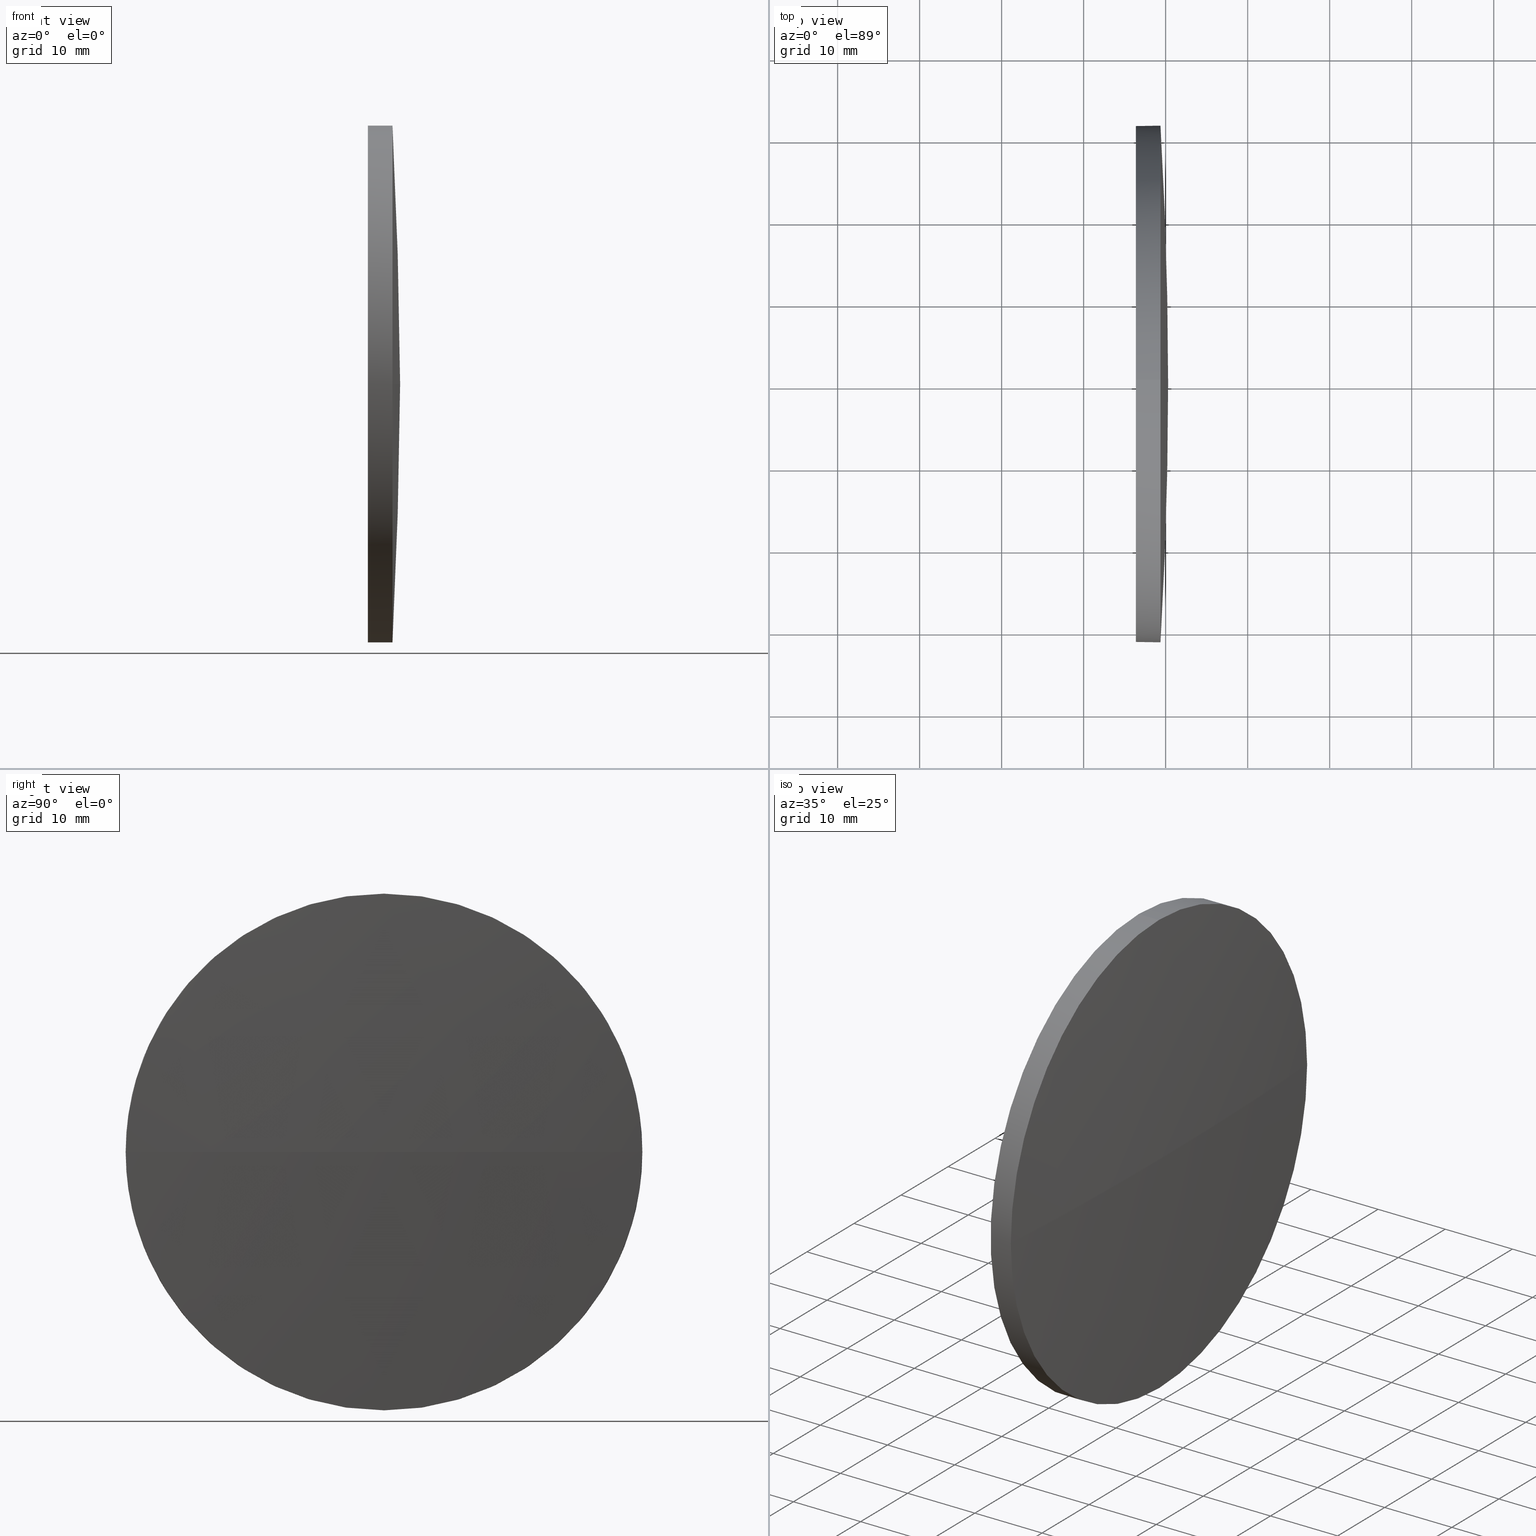
[diagram: canonical four-view strip — front | top / right | iso, engineering-drawing reading convention]
A machine part, canonical four-view strip (front | top / right | iso — engineering-drawing reading convention). The complete STEP part file that produces these views, byte-faithful:
ISO-10303-21;
HEADER;
FILE_DESCRIPTION (( 'STEP AP214' ),
    '1' );
FILE_NAME ('100076.STEP',
    '2019-05-06T05:13:00',
    ( '' ),
    ( '' ),
    'SwSTEP 2.0',
    'SolidWorks 2016',
    '' );
FILE_SCHEMA (( 'AUTOMOTIVE_DESIGN' ));
ENDSEC;

DATA;
#1 = ORIENTED_EDGE ( 'NONE', *, *, #140, .T. ) ;
#2 = AXIS2_PLACEMENT_3D ( 'NONE', #176, #177, #114 ) ;
#3 = CARTESIAN_POINT ( 'NONE',  ( 239.3701037227096700, 130.0418907599245100, 0.0000000000000000000 ) ) ;
#4 = SURFACE_STYLE_FILL_AREA ( #138 ) ;
#5 = DIRECTION ( 'NONE',  ( -1.000000000000000000, -0.0000000000000000000, -0.0000000000000000000 ) ) ;
#6 =( NAMED_UNIT ( * ) PLANE_ANGLE_UNIT ( ) SI_UNIT ( $, .RADIAN. ) );
#7 = ORIENTED_EDGE ( 'NONE', *, *, #74, .T. ) ;
#8 = EDGE_CURVE ( 'NONE', #51, #98, #100, .T. ) ;
#9 = VECTOR ( 'NONE', #184, 1000.000000000000000 ) ;
#10 = EDGE_CURVE ( 'NONE', #45, #39, #79, .T. ) ;
#11 = COLOUR_RGB ( '',1.000000000000000000, 1.000000000000000000, 1.000000000000000000 ) ;
#12 = EDGE_CURVE ( 'NONE', #17, #39, #161, .T. ) ;
#13 = SHAPE_DEFINITION_REPRESENTATION ( #68, #124 ) ;
#14 = ORIENTED_EDGE ( 'NONE', *, *, #74, .F. ) ;
#15 = DIRECTION ( 'NONE',  ( 0.0000000000000000000, 0.0000000000000000000, 1.000000000000000000 ) ) ;
#16 = DIRECTION ( 'NONE',  ( -1.000000000000000000, -0.0000000000000000000, -0.0000000000000000000 ) ) ;
#17 = VERTEX_POINT ( 'NONE', #30 ) ;
#18 = STYLED_ITEM ( 'NONE', ( #76 ), #28 ) ;
#19 = COLOUR_RGB ( '',1.000000000000000000, 1.000000000000000000, 1.000000000000000000 ) ;
#20 = DIRECTION ( 'NONE',  ( 0.0000000000000000000, 0.0000000000000000000, -1.000000000000000000 ) ) ;
#21 = CARTESIAN_POINT ( 'NONE',  ( -293.6326382127700200, 130.0418907599257100, 0.0000000000000000000 ) ) ;
#22 =( GEOMETRIC_REPRESENTATION_CONTEXT ( 3 ) GLOBAL_UNCERTAINTY_ASSIGNED_CONTEXT ( ( #178 ) ) GLOBAL_UNIT_ASSIGNED_CONTEXT ( ( #157, #6, #24 ) ) REPRESENTATION_CONTEXT ( 'NONE', 'WORKASPACE' ) );
#23 = CARTESIAN_POINT ( 'NONE',  ( -293.6326382127700200, 130.0418907599257100, 0.0000000000000000000 ) ) ;
#24 =( NAMED_UNIT ( * ) SI_UNIT ( $, .STERADIAN. ) SOLID_ANGLE_UNIT ( ) );
#25 = ORIENTED_EDGE ( 'NONE', *, *, #102, .F. ) ;
#26 = ADVANCED_FACE ( 'NONE', ( #137 ), #104, .F. ) ;
#27 = ORIENTED_EDGE ( 'NONE', *, *, #166, .T. ) ;
#28 = MANIFOLD_SOLID_BREP ( '��ת1', #165 ) ;
#29 = AXIS2_PLACEMENT_3D ( 'NONE', #103, #42, #53 ) ;
#30 = CARTESIAN_POINT ( 'NONE',  ( 239.3701037227096700, 130.0418907599245100, -31.50000000000000000 ) ) ;
#31 = CARTESIAN_POINT ( 'NONE',  ( 236.3701037227096700, 130.0418907599245100, 31.50000000000000000 ) ) ;
#32 = DIRECTION ( 'NONE',  ( 0.0000000000000000000, 0.0000000000000000000, -1.000000000000000000 ) ) ;
#33 = CARTESIAN_POINT ( 'NONE',  ( 236.3701037227096700, 130.0418907599245100, 0.0000000000000000000 ) ) ;
#34 = ORIENTED_EDGE ( 'NONE', *, *, #95, .T. ) ;
#35 = VECTOR ( 'NONE', #120, 1000.000000000000000 ) ;
#36 = AXIS2_PLACEMENT_3D ( 'NONE', #33, #155, #121 ) ;
#37 = DIRECTION ( 'NONE',  ( -1.000000000000000000, 0.0000000000000000000, 0.0000000000000000000 ) ) ;
#38 = DIRECTION ( 'NONE',  ( 0.0000000000000000000, -1.000000000000000000, 0.0000000000000000000 ) ) ;
#39 = VERTEX_POINT ( 'NONE', #57 ) ;
#40 = DIRECTION ( 'NONE',  ( -1.000000000000000000, -0.0000000000000000000, -0.0000000000000000000 ) ) ;
#41 = ORIENTED_EDGE ( 'NONE', *, *, #12, .F. ) ;
#42 = DIRECTION ( 'NONE',  ( -1.000000000000000000, -0.0000000000000000000, -0.0000000000000000000 ) ) ;
#43 = DIRECTION ( 'NONE',  ( 1.000000000000000000, 0.0000000000000000000, 0.0000000000000000000 ) ) ;
#44 = SPHERICAL_SURFACE ( 'NONE', #117, 533.9327419354797300 ) ;
#45 = VERTEX_POINT ( 'NONE', #31 ) ;
#46 = ORIENTED_EDGE ( 'NONE', *, *, #140, .F. ) ;
#47 = APPLICATION_PROTOCOL_DEFINITION ( 'draft international standard', 'automotive_design', 1998, #129 ) ;
#48 = AXIS2_PLACEMENT_3D ( 'NONE', #75, #16, #133 ) ;
#49 = EDGE_LOOP ( 'NONE', ( #34, #83, #92, #127, #181 ) ) ;
#50 = STYLED_ITEM ( 'NONE', ( #164 ), #124 ) ;
#51 = VERTEX_POINT ( 'NONE', #107 ) ;
#52 = EDGE_CURVE ( 'NONE', #39, #45, #146, .T. ) ;
#53 = DIRECTION ( 'NONE',  ( 0.0000000000000000000, 0.0000000000000000000, 1.000000000000000000 ) ) ;
#54 = FACE_OUTER_BOUND ( 'NONE', #94, .T. ) ;
#55 = CARTESIAN_POINT ( 'NONE',  ( 239.3701037227096700, 161.5418907599248500, 3.857637417314063300E-015 ) ) ;
#56 = AXIS2_PLACEMENT_3D ( 'NONE', #89, #154, #15 ) ;
#57 = CARTESIAN_POINT ( 'NONE',  ( 236.3701037227096700, 130.0418907599245100, -31.50000000000000000 ) ) ;
#58 = PRESENTATION_LAYER_ASSIGNMENT (  '', '', ( #50 ) ) ;
#59 =( NAMED_UNIT ( * ) SI_UNIT ( $, .STERADIAN. ) SOLID_ANGLE_UNIT ( ) );
#60 =( LENGTH_UNIT ( ) NAMED_UNIT ( * ) SI_UNIT ( .MILLI., .METRE. ) );
#61 = CIRCLE ( 'NONE', #29, 31.50000000000000000 ) ;
#62 = CARTESIAN_POINT ( 'NONE',  ( -293.6326382127700200, 130.0418907599257100, 0.0000000000000000000 ) ) ;
#63 = PRODUCT_DEFINITION_CONTEXT ( 'detailed design', #69, 'design' ) ;
#64 =( NAMED_UNIT ( * ) SI_UNIT ( $, .STERADIAN. ) SOLID_ANGLE_UNIT ( ) );
#65 = MECHANICAL_DESIGN_GEOMETRIC_PRESENTATION_REPRESENTATION (  '', ( #50 ), #22 ) ;
#66 = EDGE_LOOP ( 'NONE', ( #115, #27, #46, #88 ) ) ;
#67 =( NAMED_UNIT ( * ) PLANE_ANGLE_UNIT ( ) SI_UNIT ( $, .RADIAN. ) );
#68 = PRODUCT_DEFINITION_SHAPE ( 'NONE', 'NONE',  #183 ) ;
#69 = APPLICATION_CONTEXT ( 'automotive_design' ) ;
#70 = ADVANCED_FACE ( 'NONE', ( #143 ), #105, .T. ) ;
#71 = SURFACE_STYLE_USAGE ( .BOTH. , #159 ) ;
#72 = UNCERTAINTY_MEASURE_WITH_UNIT (LENGTH_MEASURE( 1.000000000000000100E-005 ), #186, 'distance_accuracy_value', 'NONE');
#73 = AXIS2_PLACEMENT_3D ( 'NONE', #81, #97, #96 ) ;
#74 = EDGE_CURVE ( 'NONE', #156, #174, #61, .T. ) ;
#75 = CARTESIAN_POINT ( 'NONE',  ( 236.3701037227096700, 130.0418907599245100, 0.0000000000000000000 ) ) ;
#76 = PRESENTATION_STYLE_ASSIGNMENT (( #171 ) ) ;
#77 = SURFACE_SIDE_STYLE ('',( #4 ) ) ;
#78 = EDGE_CURVE ( 'NONE', #174, #45, #149, .T. ) ;
#79 = CIRCLE ( 'NONE', #48, 31.50000000000000000 ) ;
#80 = CIRCLE ( 'NONE', #86, 31.50000000000000000 ) ;
#81 = CARTESIAN_POINT ( 'NONE',  ( 0.0000000000000000000, 0.0000000000000000000, 0.0000000000000000000 ) ) ;
#82 = FILL_AREA_STYLE_COLOUR ( '', #19 ) ;
#83 = ORIENTED_EDGE ( 'NONE', *, *, #12, .T. ) ;
#84 = CARTESIAN_POINT ( 'NONE',  ( 239.3701037227096700, 130.0418907599245100, 0.0000000000000000000 ) ) ;
#85 = UNCERTAINTY_MEASURE_WITH_UNIT (LENGTH_MEASURE( 1.000000000000000100E-005 ), #60, 'distance_accuracy_value', 'NONE');
#86 = AXIS2_PLACEMENT_3D ( 'NONE', #3, #93, #162 ) ;
#87 = SPHERICAL_SURFACE ( 'NONE', #125, 533.9327419354797300 ) ;
#88 = ORIENTED_EDGE ( 'NONE', *, *, #95, .F. ) ;
#89 = CARTESIAN_POINT ( 'NONE',  ( 217.3311486608872700, 130.0418907599245100, 0.0000000000000000000 ) ) ;
#90 = DIRECTION ( 'NONE',  ( 0.0000000000000000000, -1.224646799147353200E-016, 1.000000000000000000 ) ) ;
#91 = CARTESIAN_POINT ( 'NONE',  ( 236.3701037227096700, 130.0418907599245100, 0.0000000000000000000 ) ) ;
#92 = ORIENTED_EDGE ( 'NONE', *, *, #10, .F. ) ;
#93 = DIRECTION ( 'NONE',  ( -1.000000000000000000, -0.0000000000000000000, -0.0000000000000000000 ) ) ;
#94 = EDGE_LOOP ( 'NONE', ( #41, #1, #7, #131, #108 ) ) ;
#95 = EDGE_CURVE ( 'NONE', #98, #17, #122, .T. ) ;
#96 = DIRECTION ( 'NONE',  ( 1.000000000000000000, 0.0000000000000000000, 0.0000000000000000000 ) ) ;
#97 = DIRECTION ( 'NONE',  ( 0.0000000000000000000, 0.0000000000000000000, 1.000000000000000000 ) ) ;
#98 = VERTEX_POINT ( 'NONE', #55 ) ;
#99 = CIRCLE ( 'NONE', #128, 533.9327419354796100 ) ;
#100 = CIRCLE ( 'NONE', #163, 533.9327419354797300 ) ;
#101 = CARTESIAN_POINT ( 'NONE',  ( 217.3311486608872700, 130.0418907599245100, 31.50000000000000000 ) ) ;
#102 = EDGE_CURVE ( 'NONE', #174, #98, #80, .T. ) ;
#103 = CARTESIAN_POINT ( 'NONE',  ( 239.3701037227096700, 130.0418907599245100, 0.0000000000000000000 ) ) ;
#104 = PLANE ( 'NONE',  #150 ) ;
#105 = CYLINDRICAL_SURFACE ( 'NONE', #56, 31.50000000000000000 ) ;
#106 = ORIENTED_EDGE ( 'NONE', *, *, #8, .T. ) ;
#107 = CARTESIAN_POINT ( 'NONE',  ( 240.3001037227096500, 130.0418907599256800, 0.0000000000000000000 ) ) ;
#108 = ORIENTED_EDGE ( 'NONE', *, *, #52, .F. ) ;
#109 = PRODUCT_RELATED_PRODUCT_CATEGORY ( 'part', '', ( #134 ) ) ;
#110 = DIRECTION ( 'NONE',  ( 0.0000000000000000000, 0.0000000000000000000, 1.000000000000000000 ) ) ;
#111 = ADVANCED_FACE ( 'NONE', ( #169 ), #44, .T. ) ;
#112 = CARTESIAN_POINT ( 'NONE',  ( 217.3311486608872700, 130.0418907599245100, 0.0000000000000000000 ) ) ;
#113 = APPLICATION_PROTOCOL_DEFINITION ( 'draft international standard', 'automotive_design', 1998, #69 ) ;
#114 = DIRECTION ( 'NONE',  ( 0.0000000000000000000, 0.0000000000000000000, 1.000000000000000000 ) ) ;
#115 = ORIENTED_EDGE ( 'NONE', *, *, #8, .F. ) ;
#116 = ADVANCED_FACE ( 'NONE', ( #130 ), #87, .T. ) ;
#117 = AXIS2_PLACEMENT_3D ( 'NONE', #21, #126, #160 ) ;
#118 = ORIENTED_EDGE ( 'NONE', *, *, #52, .T. ) ;
#119 = AXIS2_PLACEMENT_3D ( 'NONE', #84, #40, #144 ) ;
#120 = DIRECTION ( 'NONE',  ( -1.000000000000000000, -0.0000000000000000000, -0.0000000000000000000 ) ) ;
#121 = DIRECTION ( 'NONE',  ( 0.0000000000000000000, 0.0000000000000000000, 1.000000000000000000 ) ) ;
#122 = CIRCLE ( 'NONE', #2, 31.50000000000000000 ) ;
#123 = ORIENTED_EDGE ( 'NONE', *, *, #10, .T. ) ;
#124 = ADVANCED_BREP_SHAPE_REPRESENTATION ( '100076', ( #28, #73 ), #148 ) ;
#125 = AXIS2_PLACEMENT_3D ( 'NONE', #62, #172, #38 ) ;
#126 = DIRECTION ( 'NONE',  ( 0.0000000000000000000, 0.0000000000000000000, 1.000000000000000000 ) ) ;
#127 = ORIENTED_EDGE ( 'NONE', *, *, #78, .F. ) ;
#128 = AXIS2_PLACEMENT_3D ( 'NONE', #23, #20, #37 ) ;
#129 = APPLICATION_CONTEXT ( 'automotive_design' ) ;
#130 = FACE_OUTER_BOUND ( 'NONE', #66, .T. ) ;
#131 = ORIENTED_EDGE ( 'NONE', *, *, #78, .T. ) ;
#132 = CIRCLE ( 'NONE', #119, 31.50000000000000000 ) ;
#133 = DIRECTION ( 'NONE',  ( 0.0000000000000000000, 0.0000000000000000000, 1.000000000000000000 ) ) ;
#134 = PRODUCT ( '100076', '100076', '', ( #145 ) ) ;
#135 =( NAMED_UNIT ( * ) PLANE_ANGLE_UNIT ( ) SI_UNIT ( $, .RADIAN. ) );
#136 = EDGE_LOOP ( 'NONE', ( #123, #118 ) ) ;
#137 = FACE_OUTER_BOUND ( 'NONE', #136, .T. ) ;
#138 = FILL_AREA_STYLE ('',( #168 ) ) ;
#139 = FILL_AREA_STYLE ('',( #82 ) ) ;
#140 = EDGE_CURVE ( 'NONE', #17, #156, #132, .T. ) ;
#141 = CYLINDRICAL_SURFACE ( 'NONE', #179, 31.50000000000000000 ) ;
#142 = CARTESIAN_POINT ( 'NONE',  ( 239.3701037227096700, 130.0418907599245100, 31.50000000000000000 ) ) ;
#143 = FACE_OUTER_BOUND ( 'NONE', #49, .T. ) ;
#144 = DIRECTION ( 'NONE',  ( 0.0000000000000000000, 0.0000000000000000000, 1.000000000000000000 ) ) ;
#145 = PRODUCT_CONTEXT ( 'NONE', #129, 'mechanical' ) ;
#146 = CIRCLE ( 'NONE', #36, 31.50000000000000000 ) ;
#147 = ADVANCED_FACE ( 'NONE', ( #54 ), #141, .T. ) ;
#148 =( GEOMETRIC_REPRESENTATION_CONTEXT ( 3 ) GLOBAL_UNCERTAINTY_ASSIGNED_CONTEXT ( ( #85 ) ) GLOBAL_UNIT_ASSIGNED_CONTEXT ( ( #60, #67, #59 ) ) REPRESENTATION_CONTEXT ( 'NONE', 'WORKASPACE' ) );
#149 = LINE ( 'NONE', #101, #35 ) ;
#150 = AXIS2_PLACEMENT_3D ( 'NONE', #91, #43, #32 ) ;
#151 = EDGE_LOOP ( 'NONE', ( #170, #106, #25, #14 ) ) ;
#152 = CARTESIAN_POINT ( 'NONE',  ( -293.6326382127700200, 130.0418907599257100, 0.0000000000000000000 ) ) ;
#153 = MECHANICAL_DESIGN_GEOMETRIC_PRESENTATION_REPRESENTATION (  '', ( #18 ), #173 ) ;
#154 = DIRECTION ( 'NONE',  ( -1.000000000000000000, -0.0000000000000000000, -0.0000000000000000000 ) ) ;
#155 = DIRECTION ( 'NONE',  ( -1.000000000000000000, -0.0000000000000000000, -0.0000000000000000000 ) ) ;
#156 = VERTEX_POINT ( 'NONE', #175 ) ;
#157 =( LENGTH_UNIT ( ) NAMED_UNIT ( * ) SI_UNIT ( .MILLI., .METRE. ) );
#158 = PRODUCT_DEFINITION_FORMATION_WITH_SPECIFIED_SOURCE ( '�κ�', '', #134, .NOT_KNOWN. ) ;
#159 = SURFACE_SIDE_STYLE ('',( #180 ) ) ;
#160 = DIRECTION ( 'NONE',  ( 0.0000000000000000000, -1.000000000000000000, 0.0000000000000000000 ) ) ;
#161 = LINE ( 'NONE', #185, #9 ) ;
#162 = DIRECTION ( 'NONE',  ( 0.0000000000000000000, 0.0000000000000000000, 1.000000000000000000 ) ) ;
#163 = AXIS2_PLACEMENT_3D ( 'NONE', #152, #90, #167 ) ;
#164 = PRESENTATION_STYLE_ASSIGNMENT (( #71 ) ) ;
#165 = CLOSED_SHELL ( 'NONE', ( #70, #111, #116, #147, #26 ) ) ;
#166 = EDGE_CURVE ( 'NONE', #51, #156, #99, .T. ) ;
#167 = DIRECTION ( 'NONE',  ( 0.0000000000000000000, -1.000000000000000000, -1.224646799147353200E-016 ) ) ;
#168 = FILL_AREA_STYLE_COLOUR ( '', #11 ) ;
#169 = FACE_OUTER_BOUND ( 'NONE', #151, .T. ) ;
#170 = ORIENTED_EDGE ( 'NONE', *, *, #166, .F. ) ;
#171 = SURFACE_STYLE_USAGE ( .BOTH. , #77 ) ;
#172 = DIRECTION ( 'NONE',  ( 0.0000000000000000000, 0.0000000000000000000, 1.000000000000000000 ) ) ;
#173 =( GEOMETRIC_REPRESENTATION_CONTEXT ( 3 ) GLOBAL_UNCERTAINTY_ASSIGNED_CONTEXT ( ( #72 ) ) GLOBAL_UNIT_ASSIGNED_CONTEXT ( ( #186, #135, #64 ) ) REPRESENTATION_CONTEXT ( 'NONE', 'WORKASPACE' ) );
#174 = VERTEX_POINT ( 'NONE', #142 ) ;
#175 = CARTESIAN_POINT ( 'NONE',  ( 239.3701037227096700, 98.54189075992532300, 0.0000000000000000000 ) ) ;
#176 = CARTESIAN_POINT ( 'NONE',  ( 239.3701037227096700, 130.0418907599245100, 0.0000000000000000000 ) ) ;
#177 = DIRECTION ( 'NONE',  ( -1.000000000000000000, -0.0000000000000000000, -0.0000000000000000000 ) ) ;
#178 = UNCERTAINTY_MEASURE_WITH_UNIT (LENGTH_MEASURE( 1.000000000000000100E-005 ), #157, 'distance_accuracy_value', 'NONE');
#179 = AXIS2_PLACEMENT_3D ( 'NONE', #112, #5, #110 ) ;
#180 = SURFACE_STYLE_FILL_AREA ( #139 ) ;
#181 = ORIENTED_EDGE ( 'NONE', *, *, #102, .T. ) ;
#182 = PRESENTATION_LAYER_ASSIGNMENT (  '', '', ( #18 ) ) ;
#183 = PRODUCT_DEFINITION ( 'δ֪', '', #158, #63 ) ;
#184 = DIRECTION ( 'NONE',  ( -1.000000000000000000, -0.0000000000000000000, -0.0000000000000000000 ) ) ;
#185 = CARTESIAN_POINT ( 'NONE',  ( 217.3311486608872700, 130.0418907599245100, -31.50000000000000000 ) ) ;
#186 =( LENGTH_UNIT ( ) NAMED_UNIT ( * ) SI_UNIT ( .MILLI., .METRE. ) );
ENDSEC;
END-ISO-10303-21;
